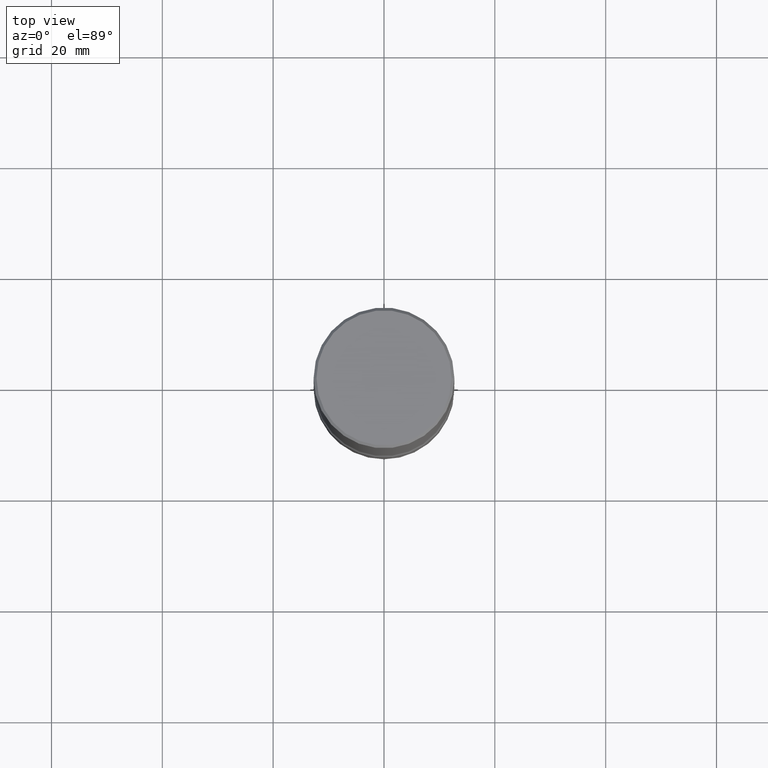
[diagram: clean part render]
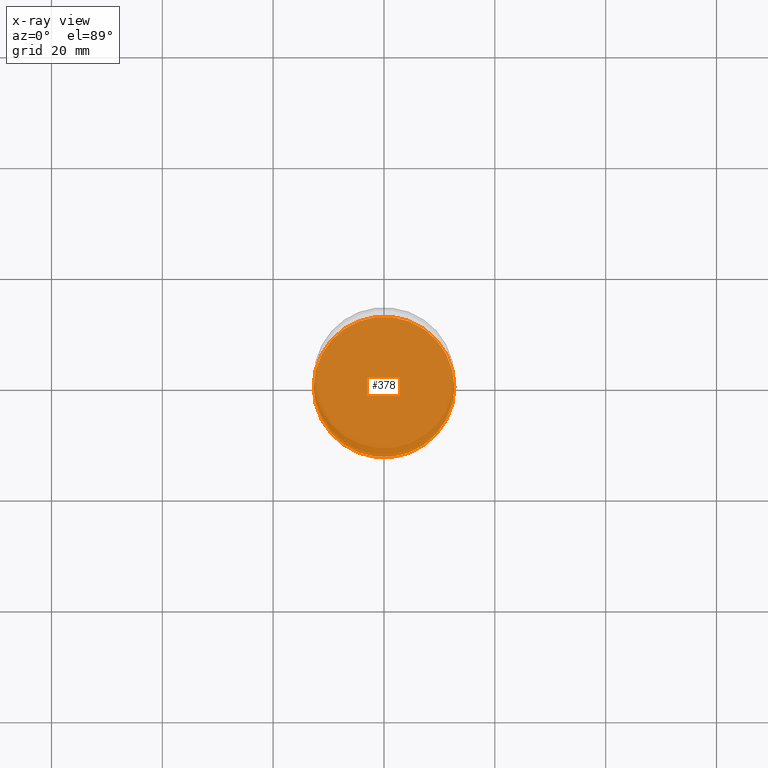
[diagram: x-ray — body ghosted, one internal face saturated and labeled with its STEP entity id]
A machine part, top view, then the same camera in x-ray: the body is ghosted and one INTERNAL B-rep face — a face not visible from any outside direction — is saturated and labeled: STEP entity #378.
In plain terms, the highlighted planar face has unit normal (0, -0, -1).
Its self-contained STEP definition (entity closure, byte-faithful):
#7 = DIRECTION ( 'NONE',  ( 2.445468806185136597E-29, -3.491481338843145583E-15, -1.000000000000000000 ) ) ;
#34 = PLANE ( 'NONE',  #290 ) ;
#78 = FACE_OUTER_BOUND ( 'NONE', #403, .T. ) ;
#112 = CIRCLE ( 'NONE', #296, 0.4994999999999992779 ) ;
#127 = DIRECTION ( 'NONE',  ( -1.000000000000000000, 6.982962677686265922E-15, 0.000000000000000000 ) ) ;
#160 = CARTESIAN_POINT ( 'NONE',  ( 0.4994999999999992779, -1.658165776406015835E-14, -3.750000000000000000 ) ) ;
#177 = DIRECTION ( 'NONE',  ( -1.000000000000000000, 6.982962677686265922E-15, -4.876176775795935793E-29 ) ) ;
#186 = CARTESIAN_POINT ( 'NONE',  ( -0.4994999999999992779, -9.542033900714521268E-15, -3.750000000000000000 ) ) ;
#258 = DIRECTION ( 'NONE',  ( 2.445468806185136597E-29, -3.491481338843145583E-15, -1.000000000000000000 ) ) ;
#290 = AXIS2_PLACEMENT_3D ( 'NONE', #427, #532, #177 ) ;
#296 = AXIS2_PLACEMENT_3D ( 'NONE', #379, #7, #467 ) ;
#325 = ORIENTED_EDGE ( 'NONE', *, *, #533, .T. ) ;
#335 = ORIENTED_EDGE ( 'NONE', *, *, #536, .T. ) ;
#341 = CARTESIAN_POINT ( 'NONE',  ( 9.170508023194262238E-29, -1.309305502066179741E-14, -3.750000000000000000 ) ) ;
#353 = VERTEX_POINT ( 'NONE', #186 ) ;
#378 = ADVANCED_FACE ( 'NONE', ( #78 ), #34, .T. ) ;
#379 = CARTESIAN_POINT ( 'NONE',  ( 9.170508023194262238E-29, -1.309305502066179741E-14, -3.750000000000000000 ) ) ;
#385 = CIRCLE ( 'NONE', #455, 0.4994999999999992779 ) ;
#403 = EDGE_LOOP ( 'NONE', ( #325, #335 ) ) ;
#427 = CARTESIAN_POINT ( 'NONE',  ( 3.487989857504376728E-15, 0.4994999999999861773, -3.750000000000001776 ) ) ;
#431 = VERTEX_POINT ( 'NONE', #160 ) ;
#455 = AXIS2_PLACEMENT_3D ( 'NONE', #341, #258, #127 ) ;
#467 = DIRECTION ( 'NONE',  ( -1.000000000000000000, 6.982962677686265922E-15, 0.000000000000000000 ) ) ;
#532 = DIRECTION ( 'NONE',  ( 2.438088387897960049E-29, -3.491481338843145188E-15, -1.000000000000000000 ) ) ;
#533 = EDGE_CURVE ( 'NONE', #431, #353, #385, .T. ) ;
#536 = EDGE_CURVE ( 'NONE', #353, #431, #112, .T. ) ;